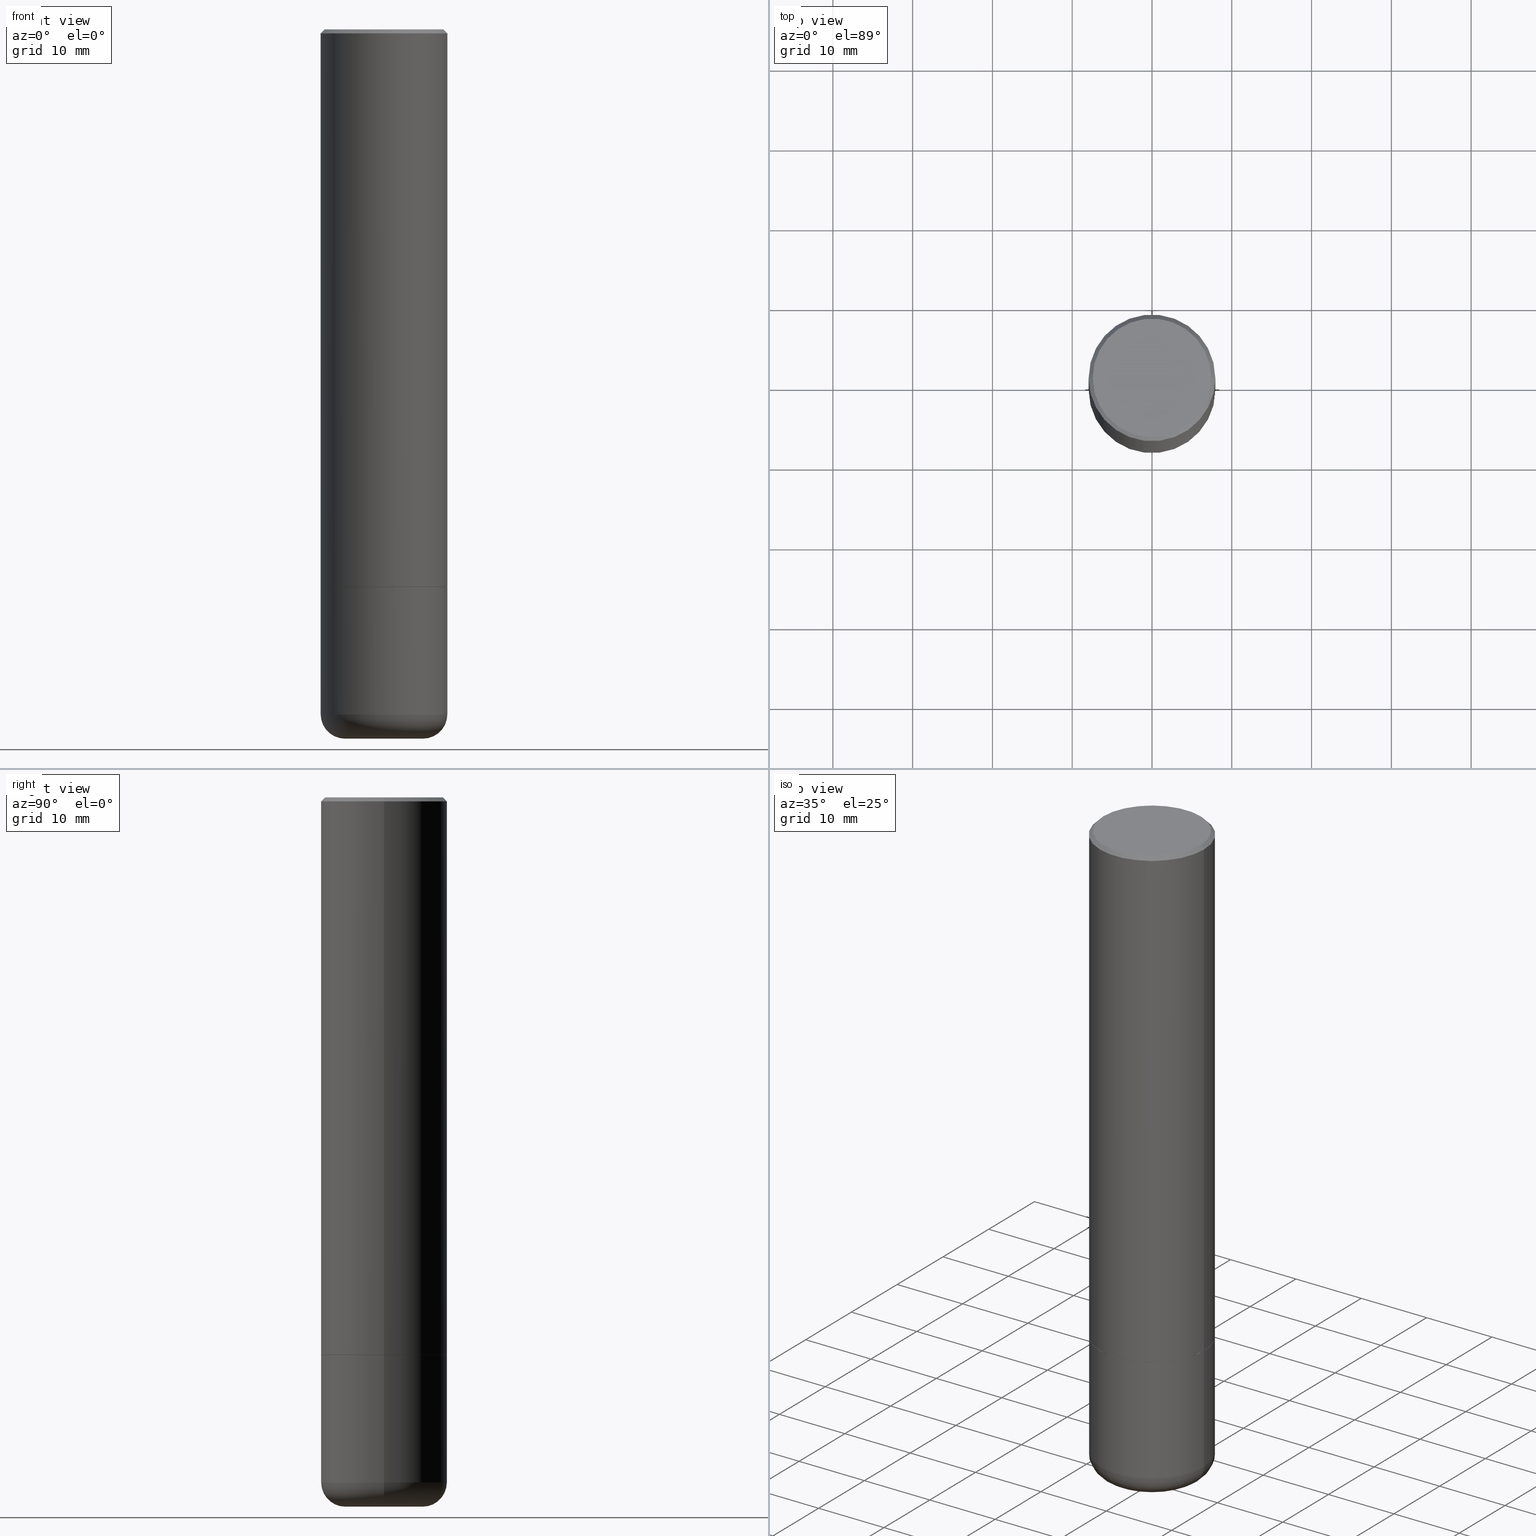
[diagram: canonical four-view strip — front | top / right | iso, engineering-drawing reading convention]
A machine part, canonical four-view strip (front | top / right | iso — engineering-drawing reading convention). The complete STEP part file that produces these views, byte-faithful:
ISO-10303-21;
HEADER;
FILE_DESCRIPTION (( 'STEP AP203' ),
    '1' );
FILE_NAME ('35715.STEP',
    '2022-11-02T20:50:17',
    ( '' ),
    ( '' ),
    'SwSTEP 2.0',
    'SolidWorks 2022',
    '' );
FILE_SCHEMA (( 'CONFIG_CONTROL_DESIGN' ));
ENDSEC;

DATA;
#1 = DIRECTION ( 'NONE',  ( -1.000000000000000000, 6.982962677686267499E-15, 0.000000000000000000 ) ) ;
#2 = ORIENTED_EDGE ( 'NONE', *, *, #265, .F. ) ;
#3 = CARTESIAN_POINT ( 'NONE',  ( 8.558429490010384641E-29, -1.221916909289494309E-14, -3.499709122587949750 ) ) ;
#4 = ADVANCED_FACE ( 'NONE', ( #17 ), #241, .F. ) ;
#5 = EDGE_CURVE ( 'NONE', #239, #261, #274, .T. ) ;
#6 = DIRECTION ( 'NONE',  ( -2.445468806185136877E-29, 3.491481338843145188E-15, 1.000000000000000000 ) ) ;
#7 = CLOSED_SHELL ( 'NONE', ( #118, #248, #126, #427, #70, #4, #451, #441, #25 ) ) ;
#8 = CC_DESIGN_APPROVAL ( #21, ( #93 ) ) ;
#9 = CARTESIAN_POINT ( 'NONE',  ( 0.3124999999999993339, -2.182175836776953614E-15, 1.523805242436226712E-29 ) ) ;
#10 = UNCERTAINTY_MEASURE_WITH_UNIT (LENGTH_MEASURE( 1.000000000000000082E-05 ), #242, 'distance_accuracy_value', 'NONE');
#11 = CYLINDRICAL_SURFACE ( 'NONE', #390, 0.3124999999999997224 ) ;
#12 = EDGE_CURVE ( 'NONE', #261, #484, #324, .T. ) ;
#13 = DIRECTION ( 'NONE',  ( 1.000000000000000000, -6.982962677686266711E-15, 4.876176775795936353E-29 ) ) ;
#14 = CLOSED_SHELL ( 'NONE', ( #44, #355, #123, #34, #327, #386, #479, #346 ) ) ;
#15 = CC_DESIGN_APPROVAL ( #403, ( #175 ) ) ;
#16 = FACE_OUTER_BOUND ( 'NONE', #35, .T. ) ;
#17 = FACE_OUTER_BOUND ( 'NONE', #257, .T. ) ;
#18 = CALENDAR_DATE ( 2022, 2, 11 ) ;
#19 =( NAMED_UNIT ( * ) PLANE_ANGLE_UNIT ( ) SI_UNIT ( $, .RADIAN. ) );
#20 = DIRECTION ( 'NONE',  ( -2.445468806185136597E-29, 3.491481338843145583E-15, 1.000000000000000000 ) ) ;
#21 = APPROVAL ( #249, 'UNSPECIFIED' ) ;
#22 = CARTESIAN_POINT ( 'NONE',  ( 8.558429490010384641E-29, -1.221916909289494309E-14, -3.499709122587949750 ) ) ;
#23 = CONICAL_SURFACE ( 'NONE', #450, 0.3114999999999994440, 0.7853981633978239785 ) ;
#24 = DIRECTION ( 'NONE',  ( 1.000000000000000000, -6.982962677686266711E-15, 4.876067333457705732E-29 ) ) ;
#25 = ADVANCED_FACE ( 'NONE', ( #393 ), #344, .F. ) ;
#26 = ORIENTED_EDGE ( 'NONE', *, *, #446, .T. ) ;
#27 = EDGE_LOOP ( 'NONE', ( #76, #321, #154, #317 ) ) ;
#28 = CARTESIAN_POINT ( 'NONE',  ( 8.558429490010384641E-29, -1.221916909289494309E-14, -3.499709122587949750 ) ) ;
#29 = AXIS2_PLACEMENT_3D ( 'NONE', #162, #193, #189 ) ;
#30 = CIRCLE ( 'NONE', #300, 0.1914528157401960418 ) ;
#31 = DATE_TIME_ROLE ( 'classification_date' ) ;
#32 = EDGE_CURVE ( 'NONE', #106, #114, #408, .T. ) ;
#33 = ORIENTED_EDGE ( 'NONE', *, *, #205, .F. ) ;
#34 = ADVANCED_FACE ( 'NONE', ( #90 ), #480, .T. ) ;
#35 = EDGE_LOOP ( 'NONE', ( #255, #448, #443, #101 ) ) ;
#36 = APPROVAL_STATUS ( 'not_yet_approved' ) ;
#37 = ORIENTED_EDGE ( 'NONE', *, *, #196, .F. ) ;
#38 = AXIS2_PLACEMENT_3D ( 'NONE', #143, #447, #444 ) ;
#39 = APPROVAL_PERSON_ORGANIZATION ( #107, #21, #181 ) ;
#40 = EDGE_CURVE ( 'NONE', #334, #455, #94, .T. ) ;
#41 = FACE_OUTER_BOUND ( 'NONE', #371, .T. ) ;
#42 = ORIENTED_EDGE ( 'NONE', *, *, #168, .T. ) ;
#43 = CC_DESIGN_PERSON_AND_ORGANIZATION_ASSIGNMENT ( #337, #214, ( #192 ) ) ;
#44 = ADVANCED_FACE ( 'NONE', ( #357 ), #470, .T. ) ;
#45 = ORIENTED_EDGE ( 'NONE', *, *, #388, .F. ) ;
#46 = DIRECTION ( 'NONE',  ( 1.000000000000000000, -6.982962677686266711E-15, 4.876176775795936353E-29 ) ) ;
#47 = CARTESIAN_POINT ( 'NONE',  ( 8.265695738820817389E-29, -1.180122287867913601E-14, -3.380004569232299083 ) ) ;
#48 = AXIS2_PLACEMENT_3D ( 'NONE', #28, #372, #74 ) ;
#49 = ORGANIZATION ( 'UNSPECIFIED', 'UNSPECIFIED', '' ) ;
#50 = LINE ( 'NONE', #262, #148 ) ;
#51 = CYLINDRICAL_SURFACE ( 'NONE', #144, 0.3124999999999997224 ) ;
#52 = ORIENTED_EDGE ( 'NONE', *, *, #380, .F. ) ;
#53 = CARTESIAN_POINT ( 'NONE',  ( -2.087702828670439639E-46, 2.980686340760894400E-32, 8.537024980200822558E-18 ) ) ;
#54 = DIRECTION ( 'NONE',  ( -2.445468806185136597E-29, 3.491481338843145583E-15, 1.000000000000000000 ) ) ;
#55 = APPROVAL_PERSON_ORGANIZATION ( #452, #259, #185 ) ;
#56 = ORIENTED_EDGE ( 'NONE', *, *, #363, .T. ) ;
#57 = CARTESIAN_POINT ( 'NONE',  ( -0.3114999999999994440, -7.388233059925943309E-15, -2.750000000000000000 ) ) ;
#58 = DIRECTION ( 'NONE',  ( -1.000000000000000000, 6.982962677686265922E-15, -4.876176775795935793E-29 ) ) ;
#59 = DIRECTION ( 'NONE',  ( -1.000000000000000000, 6.982962677686265922E-15, -4.876176775795935793E-29 ) ) ;
#60 = ADVANCED_BREP_SHAPE_REPRESENTATION ( '35715', ( #117, #278, #71 ), #345 ) ;
#61 = DIRECTION ( 'NONE',  ( -2.445468806185136597E-29, 3.491481338843145583E-15, 1.000000000000000000 ) ) ;
#62 = VECTOR ( 'NONE', #301, 39.37007874015748143 ) ;
#63 = DIRECTION ( 'NONE',  ( -2.445468806185136597E-29, 3.491481338843145583E-15, 1.000000000000000000 ) ) ;
#64 = TOROIDAL_SURFACE ( 'NONE', #277, 0.1925000000000002265, 0.1200000000000000511 ) ;
#65 = ORIENTED_EDGE ( 'NONE', *, *, #237, .F. ) ;
#66 = CARTESIAN_POINT ( 'NONE',  ( 8.265695738820817389E-29, -1.180122287867913601E-14, -3.380004569232299083 ) ) ;
#67 = SECURITY_CLASSIFICATION_LEVEL ( 'unclassified' ) ;
#68 = CALENDAR_DATE ( 2022, 2, 11 ) ;
#69 = CARTESIAN_POINT ( 'NONE',  ( 0.1914528157401960418, -1.355709255280274461E-14, -3.500000000000000000 ) ) ;
#70 = ADVANCED_FACE ( 'NONE', ( #236 ), #253, .F. ) ;
#71 = AXIS2_PLACEMENT_3D ( 'NONE', #135, #275, #434 ) ;
#72 = ORIENTED_EDGE ( 'NONE', *, *, #160, .F. ) ;
#73 = EDGE_CURVE ( 'NONE', #114, #332, #151, .T. ) ;
#74 = DIRECTION ( 'NONE',  ( -1.000000000000000000, 6.982962677686260400E-15, 0.000000000000000000 ) ) ;
#75 = DATE_AND_TIME ( #68, #199 ) ;
#76 = ORIENTED_EDGE ( 'NONE', *, *, #282, .F. ) ;
#77 = CARTESIAN_POINT ( 'NONE',  ( 6.722593748202942280E-29, -9.598082200479810007E-15, -2.749000000000000554 ) ) ;
#78 = ORIENTED_EDGE ( 'NONE', *, *, #153, .T. ) ;
#79 = AXIS2_PLACEMENT_3D ( 'NONE', #256, #343, #303 ) ;
#80 = CARTESIAN_POINT ( 'NONE',  ( 4.890937612370298557E-31, -6.982962677686327354E-17, -0.02000000000000010103 ) ) ;
#81 = VERTEX_POINT ( 'NONE', #216 ) ;
#82 = CARTESIAN_POINT ( 'NONE',  ( -0.3124999999999993339, 2.220446049250308348E-15, -1.537167215704654869E-29 ) ) ;
#83 = CARTESIAN_POINT ( 'NONE',  ( -0.3125000000000000000, -8.480952230998579063E-15, -3.380004569232299083 ) ) ;
#84 = AXIS2_PLACEMENT_3D ( 'NONE', #454, #421, #298 ) ;
#85 = DIRECTION ( 'NONE',  ( 1.000000000000000000, -6.982962677686269077E-15, 4.883557194083113462E-29 ) ) ;
#86 = AXIS2_PLACEMENT_3D ( 'NONE', #77, #273, #133 ) ;
#87 = CC_DESIGN_PERSON_AND_ORGANIZATION_ASSIGNMENT ( #486, #250, ( #175 ) ) ;
#88 = FACE_OUTER_BOUND ( 'NONE', #365, .T. ) ;
#89 = CARTESIAN_POINT ( 'NONE',  ( -0.1581215657401959795, -1.111501210079383975E-14, -3.499709122587949750 ) ) ;
#90 = FACE_OUTER_BOUND ( 'NONE', #412, .T. ) ;
#91 = DIRECTION ( 'NONE',  ( 1.000000000000000000, -6.982962677686269077E-15, 0.000000000000000000 ) ) ;
#92 = AXIS2_PLACEMENT_3D ( 'NONE', #3, #230, #225 ) ;
#93 = SECURITY_CLASSIFICATION ( '', '', #67 ) ;
#94 = LINE ( 'NONE', #57, #335 ) ;
#95 = CARTESIAN_POINT ( 'NONE',  ( 2.042516583223226229E-15, 0.2924999999999990385, -1.016989779121516435E-15 ) ) ;
#96 = VERTEX_POINT ( 'NONE', #292 ) ;
#97 = FACE_OUTER_BOUND ( 'NONE', #174, .T. ) ;
#98 = ORIENTED_EDGE ( 'NONE', *, *, #320, .F. ) ;
#99 = EDGE_CURVE ( 'NONE', #221, #114, #315, .T. ) ;
#100 =( NAMED_UNIT ( * ) SI_UNIT ( $, .STERADIAN. ) SOLID_ANGLE_UNIT ( ) );
#101 = ORIENTED_EDGE ( 'NONE', *, *, #296, .F. ) ;
#102 = CARTESIAN_POINT ( 'NONE',  ( 6.725039217009124520E-29, -9.601573681818649859E-15, -2.750000000000000000 ) ) ;
#103 = CIRCLE ( 'NONE', #351, 0.3114999999999994440 ) ;
#104 = AXIS2_PLACEMENT_3D ( 'NONE', #187, #158, #85 ) ;
#105 = APPLICATION_PROTOCOL_DEFINITION ( 'international standard', 'config_control_design', 1994, #404 ) ;
#106 = VERTEX_POINT ( 'NONE', #69 ) ;
#107 = PERSON_AND_ORGANIZATION ( #302, #49 ) ;
#108 = PERSON_AND_ORGANIZATION_ROLE ( 'design_owner' ) ;
#109 = FACE_OUTER_BOUND ( 'NONE', #314, .T. ) ;
#110 = CC_DESIGN_PERSON_AND_ORGANIZATION_ASSIGNMENT ( #358, #108, ( #461 ) ) ;
#111 = PERSON_AND_ORGANIZATION_ROLE ( 'classification_officer' ) ;
#112 = AXIS2_PLACEMENT_3D ( 'NONE', #66, #333, #364 ) ;
#113 = VECTOR ( 'NONE', #191, 39.37007874015748143 ) ;
#114 = VERTEX_POINT ( 'NONE', #405 ) ;
#115 = APPROVAL_DATE_TIME ( #330, #21 ) ;
#116 = APPROVAL_STATUS ( 'not_yet_approved' ) ;
#117 = MANIFOLD_SOLID_BREP ( 'Body-Move/Copy2[1]', #7 ) ;
#118 = ADVANCED_FACE ( 'NONE', ( #477 ), #360, .F. ) ;
#119 = LINE ( 'NONE', #306, #62 ) ;
#120 = ORIENTED_EDGE ( 'NONE', *, *, #132, .F. ) ;
#121 = AXIS2_PLACEMENT_3D ( 'NONE', #102, #244, #474 ) ;
#122 = CARTESIAN_POINT ( 'NONE',  ( 6.725039217009124520E-29, -9.601573681818649859E-15, -2.750000000000000000 ) ) ;
#123 = ADVANCED_FACE ( 'NONE', ( #109 ), #449, .T. ) ;
#124 = DIRECTION ( 'NONE',  ( -2.445468806185136597E-29, 3.491481338843145583E-15, 1.000000000000000000 ) ) ;
#125 = DIMENSIONAL_EXPONENTS ( 1.000000000000000000, 0.000000000000000000, 0.000000000000000000, 0.000000000000000000, 0.000000000000000000, 0.000000000000000000, 0.000000000000000000 ) ;
#126 = ADVANCED_FACE ( 'NONE', ( #161 ), #11, .T. ) ;
#127 = DIRECTION ( 'NONE',  ( -2.445468806185136597E-29, 3.491481338843145583E-15, 1.000000000000000000 ) ) ;
#128 = AXIS2_PLACEMENT_3D ( 'NONE', #419, #228, #348 ) ;
#129 = DIRECTION ( 'NONE',  ( 1.000000000000000000, -6.982962677686266711E-15, 4.876176775795935793E-29 ) ) ;
#130 = DIRECTION ( 'NONE',  ( -1.000000000000000000, 7.105427357601005014E-15, 0.000000000000000000 ) ) ;
#131 = CC_DESIGN_PERSON_AND_ORGANIZATION_ASSIGNMENT ( #152, #485, ( #192 ) ) ;
#132 = EDGE_CURVE ( 'NONE', #81, #342, #119, .T. ) ;
#133 = DIRECTION ( 'NONE',  ( 1.000000000000000000, -6.982962677686269077E-15, 0.000000000000000000 ) ) ;
#134 = ORIENTED_EDGE ( 'NONE', *, *, #379, .F. ) ;
#135 = CARTESIAN_POINT ( 'NONE',  ( 0.000000000000000000, 0.000000000000000000, 0.000000000000000000 ) ) ;
#136 = CARTESIAN_POINT ( 'NONE',  ( -0.1925000000000002265, -1.043342811234094233E-14, -3.380004569232299083 ) ) ;
#137 = CIRCLE ( 'NONE', #86, 0.3124999999999994449 ) ;
#138 = DIRECTION ( 'NONE',  ( 1.000000000000000000, -6.982962677686267499E-15, 0.000000000000000000 ) ) ;
#139 = CARTESIAN_POINT ( 'NONE',  ( -2.087702828670439639E-46, 2.980686340760894400E-32, 8.537024980200822558E-18 ) ) ;
#140 = VERTEX_POINT ( 'NONE', #155 ) ;
#141 = CARTESIAN_POINT ( 'NONE',  ( -0.3124999999999991673, 2.112346210000089527E-15, -0.02000000000000010103 ) ) ;
#142 = CARTESIAN_POINT ( 'NONE',  ( 4.890937612370298557E-31, -6.982962677686327354E-17, -0.02000000000000010103 ) ) ;
#143 = CARTESIAN_POINT ( 'NONE',  ( 8.559140821647976968E-29, -1.222018468595100934E-14, -3.500000000000000000 ) ) ;
#144 = AXIS2_PLACEMENT_3D ( 'NONE', #195, #349, #13 ) ;
#145 = CC_DESIGN_DATE_AND_TIME_ASSIGNMENT ( #478, #31, ( #93 ) ) ;
#146 = DATE_TIME_ROLE ( 'creation_date' ) ;
#147 = ORIENTED_EDGE ( 'NONE', *, *, #12, .T. ) ;
#148 = VECTOR ( 'NONE', #374, 39.37007874015748143 ) ;
#149 = AXIS2_PLACEMENT_3D ( 'NONE', #397, #362, #316 ) ;
#150 = APPROVAL_ROLE ( '' ) ;
#151 = LINE ( 'NONE', #453, #457 ) ;
#152 = PERSON_AND_ORGANIZATION ( #302, #49 ) ;
#153 = EDGE_CURVE ( 'NONE', #334, #368, #103, .T. ) ;
#154 = ORIENTED_EDGE ( 'NONE', *, *, #296, .T. ) ;
#155 = CARTESIAN_POINT ( 'NONE',  ( 0.1581215657401959795, -1.330396177806005595E-14, -3.499709122587949750 ) ) ;
#156 = DESIGN_CONTEXT ( 'detailed design', #272, 'design' ) ;
#157 = ORIENTED_EDGE ( 'NONE', *, *, #446, .F. ) ;
#158 = DIRECTION ( 'NONE',  ( -2.445468806185136597E-29, 3.491481338843145583E-15, 1.000000000000000000 ) ) ;
#159 = CIRCLE ( 'NONE', #79, 0.3124999999999994449 ) ;
#160 = EDGE_CURVE ( 'NONE', #243, #484, #383, .T. ) ;
#161 = FACE_OUTER_BOUND ( 'NONE', #377, .T. ) ;
#162 = CARTESIAN_POINT ( 'NONE',  ( 8.559140821647976968E-29, -1.222018468595100934E-14, -3.500000000000000000 ) ) ;
#163 = LINE ( 'NONE', #378, #417 ) ;
#164 = AXIS2_PLACEMENT_3D ( 'NONE', #354, #312, #177 ) ;
#165 = DIRECTION ( 'NONE',  ( -2.445468806185136597E-29, 3.491481338843145583E-15, 1.000000000000000000 ) ) ;
#166 = EDGE_CURVE ( 'NONE', #96, #140, #163, .T. ) ;
#167 = VECTOR ( 'NONE', #276, 39.37007874015748854 ) ;
#168 = EDGE_CURVE ( 'NONE', #81, #140, #289, .T. ) ;
#169 = DIRECTION ( 'NONE',  ( 0.7071067811868130271, -2.468850131085038979E-15, 0.7071067811862817853 ) ) ;
#170 = CARTESIAN_POINT ( 'NONE',  ( 2.182175836777021850E-15, 0.3124999999999898415, -2.750000000000000888 ) ) ;
#171 = MECHANICAL_CONTEXT ( 'NONE', #404, 'mechanical' ) ;
#172 = CARTESIAN_POINT ( 'NONE',  ( -0.1914528157401960418, -1.022030372036484833E-14, -3.500000000000000000 ) ) ;
#173 = DIRECTION ( 'NONE',  ( -2.445468806185136597E-29, 3.491481338843145583E-15, 1.000000000000000000 ) ) ;
#174 = EDGE_LOOP ( 'NONE', ( #350, #78, #226, #98 ) ) ;
#175 = PRODUCT_DEFINITION ( 'UNKNOWN', '', #192, #156 ) ;
#176 = DIRECTION ( 'NONE',  ( 1.000000000000000000, -6.982962677686266711E-15, 4.876067333457705732E-29 ) ) ;
#177 = DIRECTION ( 'NONE',  ( -1.000000000000000000, 6.982962677686269077E-15, 0.000000000000000000 ) ) ;
#178 = ORIENTED_EDGE ( 'NONE', *, *, #168, .F. ) ;
#179 = AXIS2_PLACEMENT_3D ( 'NONE', #47, #258, #459 ) ;
#180 = EDGE_CURVE ( 'NONE', #140, #106, #50, .T. ) ;
#181 = APPROVAL_ROLE ( '' ) ;
#182 = VERTEX_POINT ( 'NONE', #222 ) ;
#183 = ORIENTED_EDGE ( 'NONE', *, *, #99, .F. ) ;
#184 = AXIS2_PLACEMENT_3D ( 'NONE', #170, #395, #59 ) ;
#185 = APPROVAL_ROLE ( '' ) ;
#186 = ORIENTED_EDGE ( 'NONE', *, *, #437, .F. ) ;
#187 = CARTESIAN_POINT ( 'NONE',  ( 8.265695738820817389E-29, -1.180122287867913601E-14, -3.380004569232299083 ) ) ;
#188 = ORIENTED_EDGE ( 'NONE', *, *, #379, .T. ) ;
#189 = DIRECTION ( 'NONE',  ( 1.000000000000000000, -6.982962677686269077E-15, 0.000000000000000000 ) ) ;
#190 = ORIENTED_EDGE ( 'NONE', *, *, #217, .F. ) ;
#191 = DIRECTION ( 'NONE',  ( -2.445468806185136877E-29, 3.491481338843145188E-15, 1.000000000000000000 ) ) ;
#192 = PRODUCT_DEFINITION_FORMATION_WITH_SPECIFIED_SOURCE ( 'ANY', '', #461, .NOT_KNOWN. ) ;
#193 = DIRECTION ( 'NONE',  ( -2.445468806185136597E-29, 3.491481338843145583E-15, 1.000000000000000000 ) ) ;
#194 = CARTESIAN_POINT ( 'NONE',  ( -0.2924999999999990385, 2.077431396611657878E-15, 8.537024980186416602E-18 ) ) ;
#195 = CARTESIAN_POINT ( 'NONE',  ( 0.000000000000000000, 0.000000000000000000, 0.000000000000000000 ) ) ;
#196 = EDGE_CURVE ( 'NONE', #114, #221, #423, .T. ) ;
#197 = CIRCLE ( 'NONE', #29, 0.1914528157401960418 ) ;
#198 = CARTESIAN_POINT ( 'NONE',  ( 6.725039217009124520E-29, -9.601573681818649859E-15, -2.750000000000000000 ) ) ;
#199 = LOCAL_TIME ( 16, 50, 17.00000000000000000, #402 ) ;
#200 = DIRECTION ( 'NONE',  ( 1.000000000000000000, -6.982962677686265922E-15, 0.000000000000000000 ) ) ;
#201 = ORIENTED_EDGE ( 'NONE', *, *, #217, .T. ) ;
#202 = PLANE ( 'NONE',  #375 ) ;
#203 = DIRECTION ( 'NONE',  ( -0.7071067811868130271, 7.493145998871311837E-15, 0.7071067811862817853 ) ) ;
#204 = LINE ( 'NONE', #267, #458 ) ;
#205 = EDGE_CURVE ( 'NONE', #342, #106, #197, .T. ) ;
#206 = DIRECTION ( 'NONE',  ( -2.445468806185136597E-29, 3.491481338843145583E-15, 1.000000000000000000 ) ) ;
#207 = AXIS2_PLACEMENT_3D ( 'NONE', #80, #416, #341 ) ;
#208 = DIRECTION ( 'NONE',  ( 1.000000000000000000, -6.982962677686265133E-15, 0.000000000000000000 ) ) ;
#209 = CC_DESIGN_DATE_AND_TIME_ASSIGNMENT ( #75, #146, ( #175 ) ) ;
#210 = EDGE_CURVE ( 'NONE', #484, #261, #299, .T. ) ;
#211 = CALENDAR_DATE ( 2022, 2, 11 ) ;
#212 = DIRECTION ( 'NONE',  ( 2.445468806185136597E-29, -3.491481338843145583E-15, -1.000000000000000000 ) ) ;
#213 = AXIS2_PLACEMENT_3D ( 'NONE', #142, #389, #431 ) ;
#214 = PERSON_AND_ORGANIZATION_ROLE ( 'design_supplier' ) ;
#215 = VERTEX_POINT ( 'NONE', #422 ) ;
#216 = CARTESIAN_POINT ( 'NONE',  ( -0.1581215657401959795, -1.111501210079383975E-14, -3.499709122587949750 ) ) ;
#217 = EDGE_CURVE ( 'NONE', #140, #81, #463, .T. ) ;
#218 = ORIENTED_EDGE ( 'NONE', *, *, #153, .F. ) ;
#219 = CALENDAR_DATE ( 2022, 2, 11 ) ;
#220 = PERSON_AND_ORGANIZATION ( #302, #49 ) ;
#221 = VERTEX_POINT ( 'NONE', #83 ) ;
#222 = CARTESIAN_POINT ( 'NONE',  ( -0.3124999999999994449, -8.480952230998582218E-15, -2.750000000000000000 ) ) ;
#223 = AXIS2_PLACEMENT_3D ( 'NONE', #319, #54, #200 ) ;
#224 = LOCAL_TIME ( 16, 50, 17.00000000000000000, #481 ) ;
#225 = DIRECTION ( 'NONE',  ( 1.000000000000000000, -6.982962677686260400E-15, 0.000000000000000000 ) ) ;
#226 = ORIENTED_EDGE ( 'NONE', *, *, #476, .T. ) ;
#227 = DIRECTION ( 'NONE',  ( -0.7071067811865477948, 2.468850131082259822E-15, -0.7071067811865472397 ) ) ;
#228 = DIRECTION ( 'NONE',  ( -2.445468806185136597E-29, 3.491481338843145583E-15, 1.000000000000000000 ) ) ;
#229 = CIRCLE ( 'NONE', #433, 0.1200000000000000511 ) ;
#230 = DIRECTION ( 'NONE',  ( -2.445468806185136597E-29, 3.491481338843145583E-15, 1.000000000000000000 ) ) ;
#231 = DIRECTION ( 'NONE',  ( 1.000000000000000000, -6.982962677686269077E-15, 0.000000000000000000 ) ) ;
#232 = CARTESIAN_POINT ( 'NONE',  ( -0.3114999999999994440, -7.382934605577720906E-15, -2.750000000000000000 ) ) ;
#233 = CARTESIAN_POINT ( 'NONE',  ( 0.1925000000000002265, -1.314544319413374424E-14, -3.380004569232299083 ) ) ;
#234 = VECTOR ( 'NONE', #475, 39.37007874015748143 ) ;
#235 = CARTESIAN_POINT ( 'NONE',  ( 0.3124999999999994449, -1.178374951859560505E-14, -2.750000000000000000 ) ) ;
#236 = FACE_OUTER_BOUND ( 'NONE', #400, .T. ) ;
#237 = EDGE_CURVE ( 'NONE', #368, #334, #489, .T. ) ;
#238 = CYLINDRICAL_SURFACE ( 'NONE', #471, 0.3124999999999993339 ) ;
#239 = VERTEX_POINT ( 'NONE', #376 ) ;
#240 = CARTESIAN_POINT ( 'NONE',  ( 6.722593748202942280E-29, -9.598082200479810007E-15, -2.749000000000000554 ) ) ;
#241 = PLANE ( 'NONE',  #184 ) ;
#242 =( CONVERSION_BASED_UNIT ( 'INCH', #366 ) LENGTH_UNIT ( ) NAMED_UNIT ( #125 ) );
#243 = VERTEX_POINT ( 'NONE', #194 ) ;
#244 = DIRECTION ( 'NONE',  ( -2.438088387897960049E-29, 3.491481338843145188E-15, 1.000000000000000000 ) ) ;
#245 = TOROIDAL_SURFACE ( 'NONE', #104, 0.1925000000000002265, 0.1200000000000000511 ) ;
#246 = LOCAL_TIME ( 16, 50, 17.00000000000000000, #411 ) ;
#247 = ORIENTED_EDGE ( 'NONE', *, *, #166, .T. ) ;
#248 = ADVANCED_FACE ( 'NONE', ( #41 ), #245, .T. ) ;
#249 = APPROVAL_STATUS ( 'not_yet_approved' ) ;
#250 = PERSON_AND_ORGANIZATION_ROLE ( 'creator' ) ;
#251 = CARTESIAN_POINT ( 'NONE',  ( 4.890937612370298557E-31, -6.982962677686327354E-17, -0.02000000000000010103 ) ) ;
#252 = ORIENTED_EDGE ( 'NONE', *, *, #132, .T. ) ;
#253 = CONICAL_SURFACE ( 'NONE', #48, 0.1581215657401959795, 1.535889741755012361 ) ;
#254 = CIRCLE ( 'NONE', #352, 0.2924999999999990385 ) ;
#255 = ORIENTED_EDGE ( 'NONE', *, *, #328, .T. ) ;
#256 = CARTESIAN_POINT ( 'NONE',  ( 6.725039217009124520E-29, -9.601573681818649859E-15, -2.750000000000000000 ) ) ;
#257 = EDGE_LOOP ( 'NONE', ( #288, #280 ) ) ;
#258 = DIRECTION ( 'NONE',  ( -2.445468806185136597E-29, 3.491481338843145583E-15, 1.000000000000000000 ) ) ;
#259 = APPROVAL ( #116, 'UNSPECIFIED' ) ;
#260 = APPROVAL_PERSON_ORGANIZATION ( #220, #403, #150 ) ;
#261 = VERTEX_POINT ( 'NONE', #456 ) ;
#262 = CARTESIAN_POINT ( 'NONE',  ( 0.1914528157401960418, -1.353364634500434583E-14, -3.500000000000000000 ) ) ;
#263 = CARTESIAN_POINT ( 'NONE',  ( 6.725039217009124520E-29, -9.601573681818649859E-15, -2.750000000000000000 ) ) ;
#264 = DIRECTION ( 'NONE',  ( 1.000000000000000000, -6.982962677686265922E-15, 0.000000000000000000 ) ) ;
#265 = EDGE_CURVE ( 'NONE', #182, #332, #369, .T. ) ;
#266 = AXIS2_PLACEMENT_3D ( 'NONE', #398, #63, #138 ) ;
#267 = CARTESIAN_POINT ( 'NONE',  ( -0.3124999999999997224, 2.220446049250311109E-15, -1.537167215704656831E-29 ) ) ;
#268 = ORIENTED_EDGE ( 'NONE', *, *, #237, .T. ) ;
#269 = LINE ( 'NONE', #428, #336 ) ;
#270 = CARTESIAN_POINT ( 'NONE',  ( 0.3124999999999991673, -2.213735251080460995E-15, -0.02000000000000010103 ) ) ;
#271 = COORDINATED_UNIVERSAL_TIME_OFFSET ( 5, 0, .BEHIND. ) ;
#272 = APPLICATION_CONTEXT ( 'configuration controlled 3d designs of mechanical parts and assemblies' ) ;
#273 = DIRECTION ( 'NONE',  ( -2.445468806185136597E-29, 3.491481338843145583E-15, 1.000000000000000000 ) ) ;
#274 = LINE ( 'NONE', #270, #234 ) ;
#275 = DIRECTION ( 'NONE',  ( 0.000000000000000000, 0.000000000000000000, 1.000000000000000000 ) ) ;
#276 = DIRECTION ( 'NONE',  ( -0.9993908270190957621, 6.856857904024565937E-15, -0.03489949670249863772 ) ) ;
#277 = AXIS2_PLACEMENT_3D ( 'NONE', #359, #173, #279 ) ;
#278 = MANIFOLD_SOLID_BREP ( 'Body-Move/Copy2[2]', #14 ) ;
#279 = DIRECTION ( 'NONE',  ( 1.000000000000000000, -6.982962677686269077E-15, 4.883557194083113462E-29 ) ) ;
#280 = ORIENTED_EDGE ( 'NONE', *, *, #265, .T. ) ;
#281 = FACE_OUTER_BOUND ( 'NONE', #331, .T. ) ;
#282 = EDGE_CURVE ( 'NONE', #455, #484, #339, .T. ) ;
#283 = VECTOR ( 'NONE', #227, 39.37007874015748143 ) ;
#284 = APPROVAL_DATE_TIME ( #406, #259 ) ;
#285 = ORIENTED_EDGE ( 'NONE', *, *, #293, .F. ) ;
#286 = CALENDAR_DATE ( 2022, 2, 11 ) ;
#287 = ORIENTED_EDGE ( 'NONE', *, *, #166, .F. ) ;
#288 = ORIENTED_EDGE ( 'NONE', *, *, #293, .T. ) ;
#289 = CIRCLE ( 'NONE', #84, 0.1581215657401959795 ) ;
#290 = VECTOR ( 'NONE', #6, 39.37007874015748143 ) ;
#291 = APPROVAL_DATE_TIME ( #407, #403 ) ;
#292 = CARTESIAN_POINT ( 'NONE',  ( 8.544926279489703641E-29, -1.219989008699301242E-14, -3.494187395839062127 ) ) ;
#293 = EDGE_CURVE ( 'NONE', #332, #182, #159, .T. ) ;
#294 = ORIENTED_EDGE ( 'NONE', *, *, #5, .T. ) ;
#295 = CARTESIAN_POINT ( 'NONE',  ( -0.3124999999999991673, 2.112346210000089527E-15, -0.02000000000000010103 ) ) ;
#296 = EDGE_CURVE ( 'NONE', #215, #261, #413, .T. ) ;
#297 = EDGE_LOOP ( 'NONE', ( #45, #329, #483, #183 ) ) ;
#298 = DIRECTION ( 'NONE',  ( 1.000000000000000000, -6.982962677686260400E-15, 0.000000000000000000 ) ) ;
#299 = CIRCLE ( 'NONE', #207, 0.3124999999999991673 ) ;
#300 = AXIS2_PLACEMENT_3D ( 'NONE', #384, #206, #231 ) ;
#301 = DIRECTION ( 'NONE',  ( -0.9999619230641714207, 6.952228252019216578E-15, -0.008726535498360797616 ) ) ;
#302 = PERSON ( 'UNSPECIFIED', 'UNSPECIFIED', 'UNSPECIFIED', ('UNSPECIFIED'), ('UNSPECIFIED'), ('UNSPECIFIED') ) ;
#303 = DIRECTION ( 'NONE',  ( 1.000000000000000000, -6.982962677686269077E-15, 0.000000000000000000 ) ) ;
#304 = PRODUCT_DEFINITION_SHAPE ( 'NONE', 'NONE',  #175 ) ;
#305 = ORIENTED_EDGE ( 'NONE', *, *, #40, .T. ) ;
#306 = CARTESIAN_POINT ( 'NONE',  ( -0.1914528157401960418, -1.088327681909927408E-14, -3.500000000000000000 ) ) ;
#307 = AXIS2_PLACEMENT_3D ( 'NONE', #251, #212, #1 ) ;
#308 = CIRCLE ( 'NONE', #361, 0.2924999999999990385 ) ;
#309 = CARTESIAN_POINT ( 'NONE',  ( -0.3124999999999994449, -2.613509864378025150E-15, -2.749000000000000554 ) ) ;
#310 = DIRECTION ( 'NONE',  ( 2.438088387897960049E-29, -3.491481338843145188E-15, -1.000000000000000000 ) ) ;
#311 = CC_DESIGN_PERSON_AND_ORGANIZATION_ASSIGNMENT ( #326, #111, ( #93 ) ) ;
#312 = DIRECTION ( 'NONE',  ( 2.445468806185136597E-29, -3.491481338843145583E-15, -1.000000000000000000 ) ) ;
#313 = FACE_OUTER_BOUND ( 'NONE', #399, .T. ) ;
#314 = EDGE_LOOP ( 'NONE', ( #52, #294, #147, #72 ) ) ;
#315 = CIRCLE ( 'NONE', #112, 0.3125000000000000000 ) ;
#316 = DIRECTION ( 'NONE',  ( 1.000000000000000000, -6.982962677686266711E-15, 4.876176775795935793E-29 ) ) ;
#317 = ORIENTED_EDGE ( 'NONE', *, *, #210, .F. ) ;
#318 = DIRECTION ( 'NONE',  ( 7.105427357601001859E-15, 1.000000000000000000, -3.491481338843145583E-15 ) ) ;
#319 = CARTESIAN_POINT ( 'NONE',  ( 6.725039217009124520E-29, -9.601573681818649859E-15, -2.750000000000000000 ) ) ;
#320 = EDGE_CURVE ( 'NONE', #455, #215, #137, .T. ) ;
#321 = ORIENTED_EDGE ( 'NONE', *, *, #320, .T. ) ;
#322 = DIRECTION ( 'NONE',  ( -2.445468806185136877E-29, 3.491481338843145188E-15, 1.000000000000000000 ) ) ;
#323 = ORIENTED_EDGE ( 'NONE', *, *, #73, .F. ) ;
#324 = CIRCLE ( 'NONE', #266, 0.3124999999999991673 ) ;
#325 = LOCAL_TIME ( 16, 50, 17.00000000000000000, #491 ) ;
#326 = PERSON_AND_ORGANIZATION ( #302, #49 ) ;
#327 = ADVANCED_FACE ( 'NONE', ( #436 ), #238, .T. ) ;
#328 = EDGE_CURVE ( 'NONE', #215, #455, #409, .T. ) ;
#329 = ORIENTED_EDGE ( 'NONE', *, *, #205, .T. ) ;
#330 = DATE_AND_TIME ( #211, #325 ) ;
#331 = EDGE_LOOP ( 'NONE', ( #65, #218 ) ) ;
#332 = VERTEX_POINT ( 'NONE', #235 ) ;
#333 = DIRECTION ( 'NONE',  ( -2.445468806185136597E-29, 3.491481338843145583E-15, 1.000000000000000000 ) ) ;
#334 = VERTEX_POINT ( 'NONE', #232 ) ;
#335 = VECTOR ( 'NONE', #203, 39.37007874015748854 ) ;
#336 = VECTOR ( 'NONE', #169, 39.37007874015748854 ) ;
#337 = PERSON_AND_ORGANIZATION ( #302, #49 ) ;
#338 = ORIENTED_EDGE ( 'NONE', *, *, #32, .F. ) ;
#339 = LINE ( 'NONE', #82, #113 ) ;
#340 = ORIENTED_EDGE ( 'NONE', *, *, #160, .T. ) ;
#341 = DIRECTION ( 'NONE',  ( 1.000000000000000000, -6.982962677686267499E-15, 0.000000000000000000 ) ) ;
#342 = VERTEX_POINT ( 'NONE', #172 ) ;
#343 = DIRECTION ( 'NONE',  ( -2.445468806185136597E-29, 3.491481338843145583E-15, 1.000000000000000000 ) ) ;
#344 = CONICAL_SURFACE ( 'NONE', #164, 0.1914528157401960418, 1.562069680534938110 ) ;
#345 =( GEOMETRIC_REPRESENTATION_CONTEXT ( 3 ) GLOBAL_UNCERTAINTY_ASSIGNED_CONTEXT ( ( #10 ) ) GLOBAL_UNIT_ASSIGNED_CONTEXT ( ( #242, #19, #100 ) ) REPRESENTATION_CONTEXT ( 'NONE', 'WORKASPACE' ) );
#346 = ADVANCED_FACE ( 'NONE', ( #313 ), #202, .F. ) ;
#347 = DIRECTION ( 'NONE',  ( -2.445468806185136597E-29, 3.491481338843145583E-15, 1.000000000000000000 ) ) ;
#348 = DIRECTION ( 'NONE',  ( 1.000000000000000000, -6.982962677686265922E-15, 0.000000000000000000 ) ) ;
#349 = DIRECTION ( 'NONE',  ( -2.445468806185136597E-29, 3.491481338843145583E-15, 1.000000000000000000 ) ) ;
#350 = ORIENTED_EDGE ( 'NONE', *, *, #40, .F. ) ;
#351 = AXIS2_PLACEMENT_3D ( 'NONE', #263, #127, #264 ) ;
#352 = AXIS2_PLACEMENT_3D ( 'NONE', #139, #165, #176 ) ;
#353 = FACE_OUTER_BOUND ( 'NONE', #297, .T. ) ;
#354 = CARTESIAN_POINT ( 'NONE',  ( 8.559140821647976968E-29, -1.222018468595100934E-14, -3.500000000000000000 ) ) ;
#355 = ADVANCED_FACE ( 'NONE', ( #16 ), #387, .T. ) ;
#356 = CARTESIAN_POINT ( 'NONE',  ( 0.000000000000000000, 0.000000000000000000, 0.000000000000000000 ) ) ;
#357 = FACE_OUTER_BOUND ( 'NONE', #492, .T. ) ;
#358 = PERSON_AND_ORGANIZATION ( #302, #49 ) ;
#359 = CARTESIAN_POINT ( 'NONE',  ( 8.265695738820817389E-29, -1.180122287867913601E-14, -3.380004569232299083 ) ) ;
#360 = CONICAL_SURFACE ( 'NONE', #38, 0.1914528157401960418, 1.562069680534938110 ) ;
#361 = AXIS2_PLACEMENT_3D ( 'NONE', #53, #61, #24 ) ;
#362 = DIRECTION ( 'NONE',  ( -2.445468806185136597E-29, 3.491481338843145583E-15, 1.000000000000000000 ) ) ;
#363 = EDGE_CURVE ( 'NONE', #221, #182, #204, .T. ) ;
#364 = DIRECTION ( 'NONE',  ( 1.000000000000000000, -6.982962677686269077E-15, 0.000000000000000000 ) ) ;
#365 = EDGE_LOOP ( 'NONE', ( #426, #488, #373, #2 ) ) ;
#366 = LENGTH_MEASURE_WITH_UNIT ( LENGTH_MEASURE( 0.02539999999999999897 ), #396 );
#367 = ORIENTED_EDGE ( 'NONE', *, *, #180, .F. ) ;
#368 = VERTEX_POINT ( 'NONE', #435 ) ;
#369 = CIRCLE ( 'NONE', #424, 0.3124999999999994449 ) ;
#370 = ORIENTED_EDGE ( 'NONE', *, *, #5, .F. ) ;
#371 = EDGE_LOOP ( 'NONE', ( #26, #473, #37, #338 ) ) ;
#372 = DIRECTION ( 'NONE',  ( 2.445468806185136597E-29, -3.491481338843145583E-15, -1.000000000000000000 ) ) ;
#373 = ORIENTED_EDGE ( 'NONE', *, *, #73, .T. ) ;
#374 = DIRECTION ( 'NONE',  ( 0.9999619230641714207, -6.890705306874796929E-15, -0.008726535498360797616 ) ) ;
#375 = AXIS2_PLACEMENT_3D ( 'NONE', #95, #310, #58 ) ;
#376 = CARTESIAN_POINT ( 'NONE',  ( 0.2924999999999990385, -2.110215457714314014E-15, 8.537024980215342529E-18 ) ) ;
#377 = EDGE_LOOP ( 'NONE', ( #487, #56, #285, #323 ) ) ;
#378 = CARTESIAN_POINT ( 'NONE',  ( 0.1581215657401959795, -1.330396177806005595E-14, -3.499709122587949750 ) ) ;
#379 = EDGE_CURVE ( 'NONE', #243, #239, #308, .T. ) ;
#380 = EDGE_CURVE ( 'NONE', #239, #243, #254, .T. ) ;
#381 = DIRECTION ( 'NONE',  ( 0.9993908270190957621, -6.978169709227534388E-15, -0.03489949670249863772 ) ) ;
#382 = AXIS2_PLACEMENT_3D ( 'NONE', #22, #392, #425 ) ;
#383 = LINE ( 'NONE', #295, #283 ) ;
#384 = CARTESIAN_POINT ( 'NONE',  ( 8.559140821647976968E-29, -1.222018468595100934E-14, -3.500000000000000000 ) ) ;
#385 = EDGE_LOOP ( 'NONE', ( #186, #247, #178 ) ) ;
#386 = ADVANCED_FACE ( 'NONE', ( #97 ), #23, .T. ) ;
#387 = CYLINDRICAL_SURFACE ( 'NONE', #149, 0.3124999999999993339 ) ;
#388 = EDGE_CURVE ( 'NONE', #342, #221, #229, .T. ) ;
#389 = DIRECTION ( 'NONE',  ( 2.445468806185136597E-29, -3.491481338843145583E-15, -1.000000000000000000 ) ) ;
#390 = AXIS2_PLACEMENT_3D ( 'NONE', #460, #124, #46 ) ;
#391 = CC_DESIGN_SECURITY_CLASSIFICATION ( #93, ( #192 ) ) ;
#392 = DIRECTION ( 'NONE',  ( 2.445468806185136597E-29, -3.491481338843145583E-15, -1.000000000000000000 ) ) ;
#393 = FACE_OUTER_BOUND ( 'NONE', #439, .T. ) ;
#394 = DIRECTION ( 'NONE',  ( 1.000000000000000000, -6.982962677686265922E-15, 0.000000000000000000 ) ) ;
#395 = DIRECTION ( 'NONE',  ( 2.438088387897960049E-29, -3.491481338843145188E-15, -1.000000000000000000 ) ) ;
#396 =( LENGTH_UNIT ( ) NAMED_UNIT ( * ) SI_UNIT ( $, .METRE. ) );
#397 = CARTESIAN_POINT ( 'NONE',  ( 0.000000000000000000, 0.000000000000000000, 0.000000000000000000 ) ) ;
#398 = CARTESIAN_POINT ( 'NONE',  ( 4.890937612370298557E-31, -6.982962677686327354E-17, -0.02000000000000010103 ) ) ;
#399 = EDGE_LOOP ( 'NONE', ( #188, #445 ) ) ;
#400 = EDGE_LOOP ( 'NONE', ( #287, #469, #190 ) ) ;
#401 = EDGE_LOOP ( 'NONE', ( #42, #418, #33, #120 ) ) ;
#402 = COORDINATED_UNIVERSAL_TIME_OFFSET ( 5, 0, .BEHIND. ) ;
#403 = APPROVAL ( #36, 'UNSPECIFIED' ) ;
#404 = APPLICATION_CONTEXT ( 'configuration controlled 3d designs of mechanical parts and assemblies' ) ;
#405 = CARTESIAN_POINT ( 'NONE',  ( 0.3125000000000000000, -1.398339871545609435E-14, -3.380004569232299083 ) ) ;
#406 = DATE_AND_TIME ( #18, #482 ) ;
#407 = DATE_AND_TIME ( #286, #224 ) ;
#408 = CIRCLE ( 'NONE', #432, 0.1200000000000000511 ) ;
#409 = CIRCLE ( 'NONE', #490, 0.3124999999999994449 ) ;
#410 = SHAPE_DEFINITION_REPRESENTATION ( #304, #60 ) ;
#411 = COORDINATED_UNIVERSAL_TIME_OFFSET ( 5, 0, .BEHIND. ) ;
#412 = EDGE_LOOP ( 'NONE', ( #370, #134, #340, #466 ) ) ;
#413 = LINE ( 'NONE', #9, #290 ) ;
#414 = APPLICATION_PROTOCOL_DEFINITION ( 'international standard', 'config_control_design', 1994, #272 ) ;
#415 = ORIENTED_EDGE ( 'NONE', *, *, #476, .F. ) ;
#416 = DIRECTION ( 'NONE',  ( -2.445468806185136597E-29, 3.491481338843145583E-15, 1.000000000000000000 ) ) ;
#417 = VECTOR ( 'NONE', #381, 39.37007874015748854 ) ;
#418 = ORIENTED_EDGE ( 'NONE', *, *, #180, .T. ) ;
#419 = CARTESIAN_POINT ( 'NONE',  ( 6.725039217009124520E-29, -9.601573681818649859E-15, -2.750000000000000000 ) ) ;
#420 = PRODUCT_RELATED_PRODUCT_CATEGORY ( 'detail', '', ( #461 ) ) ;
#421 = DIRECTION ( 'NONE',  ( -2.445468806185136597E-29, 3.491481338843145583E-15, 1.000000000000000000 ) ) ;
#422 = CARTESIAN_POINT ( 'NONE',  ( 0.3124999999999994449, -1.178025803725676520E-14, -2.749000000000000554 ) ) ;
#423 = CIRCLE ( 'NONE', #179, 0.3125000000000000000 ) ;
#424 = AXIS2_PLACEMENT_3D ( 'NONE', #122, #347, #462 ) ;
#425 = DIRECTION ( 'NONE',  ( -1.000000000000000000, 6.982962677686260400E-15, 0.000000000000000000 ) ) ;
#426 = ORIENTED_EDGE ( 'NONE', *, *, #363, .F. ) ;
#427 = ADVANCED_FACE ( 'NONE', ( #468 ), #442, .F. ) ;
#428 = CARTESIAN_POINT ( 'NONE',  ( 0.3114999999999994440, -1.177676655591791904E-14, -2.750000000000000000 ) ) ;
#429 = DIRECTION ( 'NONE',  ( -6.982962677686266711E-15, -1.000000000000000000, 3.491481338843145583E-15 ) ) ;
#430 = DIRECTION ( 'NONE',  ( -2.445468806185136597E-29, 3.491481338843145583E-15, 1.000000000000000000 ) ) ;
#431 = DIRECTION ( 'NONE',  ( -1.000000000000000000, 6.982962677686267499E-15, 0.000000000000000000 ) ) ;
#432 = AXIS2_PLACEMENT_3D ( 'NONE', #233, #429, #208 ) ;
#433 = AXIS2_PLACEMENT_3D ( 'NONE', #136, #318, #130 ) ;
#434 = DIRECTION ( 'NONE',  ( 1.000000000000000000, 0.000000000000000000, 0.000000000000000000 ) ) ;
#435 = CARTESIAN_POINT ( 'NONE',  ( 0.3114999999999994440, -1.177676655591791904E-14, -2.750000000000000000 ) ) ;
#436 = FACE_OUTER_BOUND ( 'NONE', #27, .T. ) ;
#437 = EDGE_CURVE ( 'NONE', #96, #81, #472, .T. ) ;
#438 = ORIENTED_EDGE ( 'NONE', *, *, #328, .F. ) ;
#439 = EDGE_LOOP ( 'NONE', ( #367, #201, #252, #157 ) ) ;
#440 = PLANE ( 'NONE',  #121 ) ;
#441 = ADVANCED_FACE ( 'NONE', ( #353 ), #64, .T. ) ;
#442 = CONICAL_SURFACE ( 'NONE', #382, 0.1581215657401959795, 1.535889741755012361 ) ;
#443 = ORIENTED_EDGE ( 'NONE', *, *, #12, .F. ) ;
#444 = DIRECTION ( 'NONE',  ( -1.000000000000000000, 6.982962677686269077E-15, 0.000000000000000000 ) ) ;
#445 = ORIENTED_EDGE ( 'NONE', *, *, #380, .T. ) ;
#446 = EDGE_CURVE ( 'NONE', #106, #342, #30, .T. ) ;
#447 = DIRECTION ( 'NONE',  ( 2.445468806185136597E-29, -3.491481338843145583E-15, -1.000000000000000000 ) ) ;
#448 = ORIENTED_EDGE ( 'NONE', *, *, #282, .T. ) ;
#449 = CONICAL_SURFACE ( 'NONE', #307, 0.3124999999999991673, 0.7853981633974487231 ) ;
#450 = AXIS2_PLACEMENT_3D ( 'NONE', #198, #20, #394 ) ;
#451 = ADVANCED_FACE ( 'NONE', ( #88 ), #51, .T. ) ;
#452 = PERSON_AND_ORGANIZATION ( #302, #49 ) ;
#453 = CARTESIAN_POINT ( 'NONE',  ( 0.3124999999999997224, -2.182175836776956375E-15, 1.523805242436228674E-29 ) ) ;
#454 = CARTESIAN_POINT ( 'NONE',  ( 8.558429490010384641E-29, -1.221916909289494309E-14, -3.499709122587949750 ) ) ;
#455 = VERTEX_POINT ( 'NONE', #309 ) ;
#456 = CARTESIAN_POINT ( 'NONE',  ( 0.3124999999999991673, -2.213735251080460995E-15, -0.02000000000000010103 ) ) ;
#457 = VECTOR ( 'NONE', #322, 39.37007874015748143 ) ;
#458 = VECTOR ( 'NONE', #465, 39.37007874015748143 ) ;
#459 = DIRECTION ( 'NONE',  ( 1.000000000000000000, -6.982962677686269077E-15, 0.000000000000000000 ) ) ;
#460 = CARTESIAN_POINT ( 'NONE',  ( 0.000000000000000000, 0.000000000000000000, 0.000000000000000000 ) ) ;
#461 = PRODUCT ( '35715', '35715', '', ( #171 ) ) ;
#462 = DIRECTION ( 'NONE',  ( 1.000000000000000000, -6.982962677686269077E-15, 0.000000000000000000 ) ) ;
#463 = CIRCLE ( 'NONE', #92, 0.1581215657401959795 ) ;
#464 = CC_DESIGN_APPROVAL ( #259, ( #192 ) ) ;
#465 = DIRECTION ( 'NONE',  ( -2.445468806185136877E-29, 3.491481338843145188E-15, 1.000000000000000000 ) ) ;
#466 = ORIENTED_EDGE ( 'NONE', *, *, #210, .T. ) ;
#467 = DIRECTION ( 'NONE',  ( -2.445468806185136597E-29, 3.491481338843145583E-15, 1.000000000000000000 ) ) ;
#468 = FACE_OUTER_BOUND ( 'NONE', #385, .T. ) ;
#469 = ORIENTED_EDGE ( 'NONE', *, *, #437, .T. ) ;
#470 = CONICAL_SURFACE ( 'NONE', #223, 0.3114999999999994440, 0.7853981633978239785 ) ;
#471 = AXIS2_PLACEMENT_3D ( 'NONE', #356, #467, #129 ) ;
#472 = LINE ( 'NONE', #89, #167 ) ;
#473 = ORIENTED_EDGE ( 'NONE', *, *, #388, .T. ) ;
#474 = DIRECTION ( 'NONE',  ( 1.000000000000000000, -6.982962677686265922E-15, 4.876176775795935793E-29 ) ) ;
#475 = DIRECTION ( 'NONE',  ( 0.7071067811865477948, -7.319954787623257623E-15, -0.7071067811865472397 ) ) ;
#476 = EDGE_CURVE ( 'NONE', #368, #215, #269, .T. ) ;
#477 = FACE_OUTER_BOUND ( 'NONE', #401, .T. ) ;
#478 = DATE_AND_TIME ( #219, #246 ) ;
#479 = ADVANCED_FACE ( 'NONE', ( #281 ), #440, .F. ) ;
#480 = CONICAL_SURFACE ( 'NONE', #213, 0.3124999999999991673, 0.7853981633974487231 ) ;
#481 = COORDINATED_UNIVERSAL_TIME_OFFSET ( 5, 0, .BEHIND. ) ;
#482 = LOCAL_TIME ( 16, 50, 17.00000000000000000, #271 ) ;
#483 = ORIENTED_EDGE ( 'NONE', *, *, #32, .T. ) ;
#484 = VERTEX_POINT ( 'NONE', #141 ) ;
#485 = PERSON_AND_ORGANIZATION_ROLE ( 'creator' ) ;
#486 = PERSON_AND_ORGANIZATION ( #302, #49 ) ;
#487 = ORIENTED_EDGE ( 'NONE', *, *, #196, .T. ) ;
#488 = ORIENTED_EDGE ( 'NONE', *, *, #99, .T. ) ;
#489 = CIRCLE ( 'NONE', #128, 0.3114999999999994440 ) ;
#490 = AXIS2_PLACEMENT_3D ( 'NONE', #240, #430, #91 ) ;
#491 = COORDINATED_UNIVERSAL_TIME_OFFSET ( 5, 0, .BEHIND. ) ;
#492 = EDGE_LOOP ( 'NONE', ( #268, #305, #438, #415 ) ) ;
ENDSEC;
END-ISO-10303-21;
